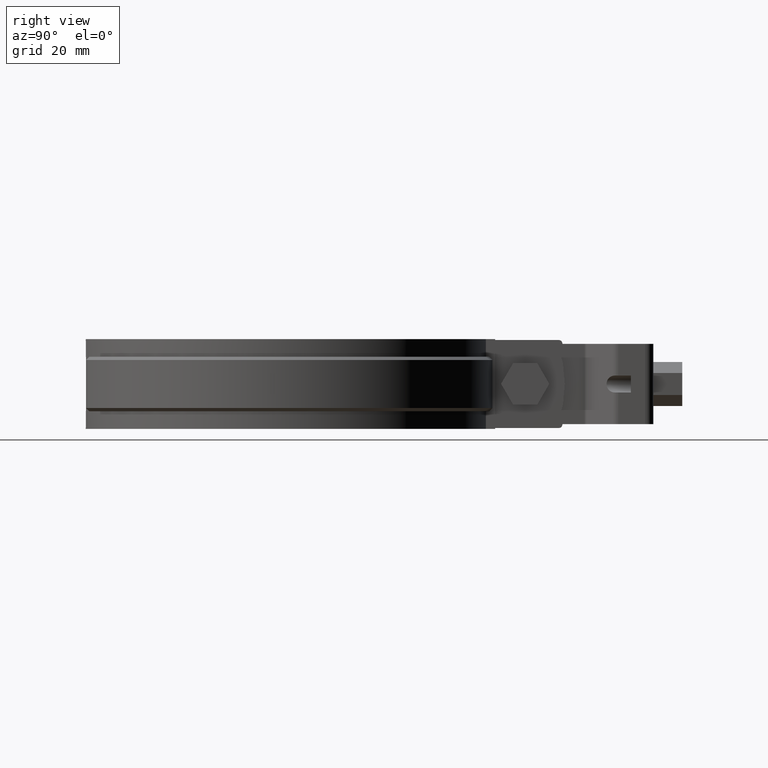
[diagram: clean part render]
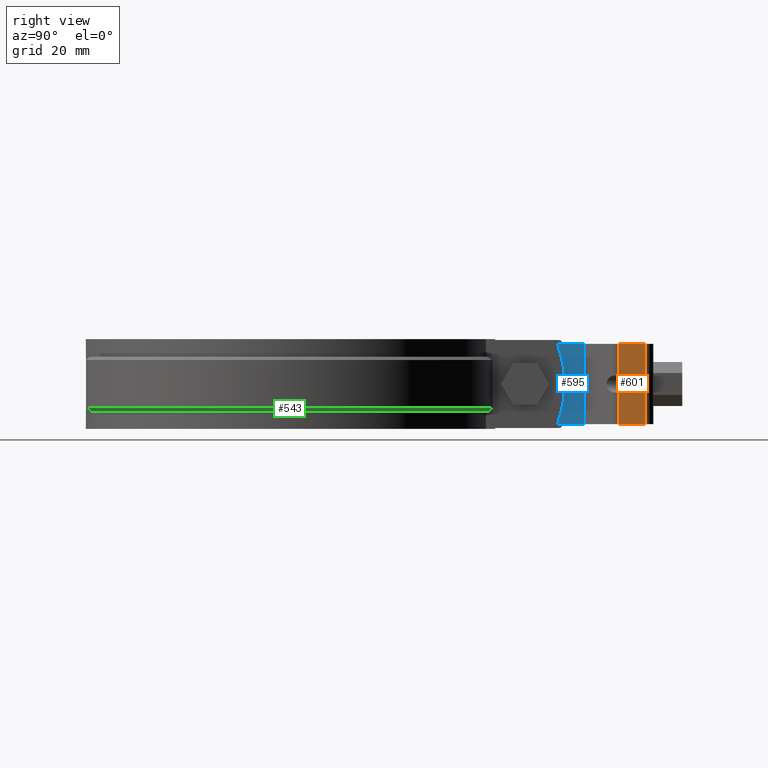
[diagram: same view with three faces highlighted in distinct colors, each labeled with its STEP entity id]
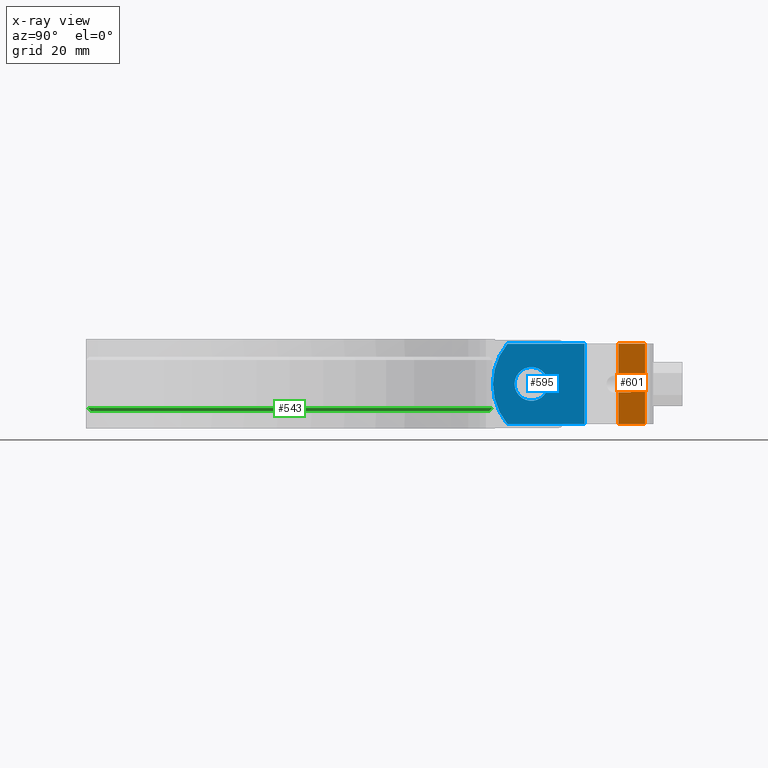
[diagram: x-ray of the same camera — body ghosted, the three highlighted faces saturated]
A machine part, right view with three faces highlighted in distinct colors.
The next image is the same camera in x-ray (body ghosted, the three faces saturated) — at least one of them is partly hidden behind the body in this view.
Their STEP definitions:

[orange] entity #601 — the highlighted planar face has unit normal (1, 0, 0).
#601 = ADVANCED_FACE( '', ( #1098 ), #1099, .T. );
#1098 = FACE_OUTER_BOUND( '', #2386, .T. );
#1099 = PLANE( '', #2387 );
#2386 = EDGE_LOOP( '', ( #5071, #5072, #5073, #5074, #5075, #5076, #5077, #5078 ) );
#2387 = AXIS2_PLACEMENT_3D( '', #5079, #5080, #5081 );
#5071 = ORIENTED_EDGE( '', *, *, #7152, .T. );
#5072 = ORIENTED_EDGE( '', *, *, #7153, .T. );
#5073 = ORIENTED_EDGE( '', *, *, #7154, .F. );
#5074 = ORIENTED_EDGE( '', *, *, #7113, .F. );
#5075 = ORIENTED_EDGE( '', *, *, #7150, .T. );
#5076 = ORIENTED_EDGE( '', *, *, #7138, .T. );
#5077 = ORIENTED_EDGE( '', *, *, #7148, .F. );
#5078 = ORIENTED_EDGE( '', *, *, #7134, .F. );
#5079 = CARTESIAN_POINT( '', ( 12.2499999999805, 103.497631763381, 12.4999999990655 ) );
#5080 = DIRECTION( '', ( 1.00000000000000, 2.55394610918241E-013, 1.69013704294046E-013 ) );
#5081 = DIRECTION( '', ( 2.55394610917021E-013, -1.00000000000000, 7.21711579387898E-012 ) );
#7113 = EDGE_CURVE( '', #8325, #8327, #8328, .T. );
#7134 = EDGE_CURVE( '', #8364, #8366, #8367, .T. );
#7138 = EDGE_CURVE( '', #8374, #8372, #8375, .T. );
#7148 = EDGE_CURVE( '', #8366, #8372, #8391, .T. );
#7150 = EDGE_CURVE( '', #8325, #8374, #8393, .T. );
#7152 = EDGE_CURVE( '', #8364, #8395, #8396, .T. );
#7153 = EDGE_CURVE( '', #8395, #8397, #8398, .T. );
#7154 = EDGE_CURVE( '', #8327, #8397, #8399, .T. );
#8325 = VERTEX_POINT( '', #12198 );
#8327 = VERTEX_POINT( '', #12200 );
#8328 = LINE( '', #12201, #12202 );
#8364 = VERTEX_POINT( '', #12248 );
#8366 = VERTEX_POINT( '', #12259 );
#8367 = LINE( '', #12260, #12261 );
#8372 = VERTEX_POINT( '', #12266 );
#8374 = VERTEX_POINT( '', #12268 );
#8375 = LINE( '', #12269, #12270 );
#8391 = LINE( '', #12307, #12308 );
#8393 = LINE( '', #12311, #12312 );
#8395 = VERTEX_POINT( '', #12315 );
#8396 = LINE( '', #12316, #12317 );
#8397 = VERTEX_POINT( '', #12318 );
#8398 = LINE( '', #12319, #12320 );
#8399 = LINE( '', #12321, #12322 );
#12198 = CARTESIAN_POINT( '', ( 12.2499999999805, 103.497631763381, 12.4999999990655 ) );
#12200 = CARTESIAN_POINT( '', ( 12.2499999999783, 111.801825964267, 12.4999999990056 ) );
#12201 = CARTESIAN_POINT( '', ( 12.2499999999805, 103.497631763381, 12.4999999990655 ) );
#12202 = VECTOR( '', #14107, 1000.00000000000 );
#12248 = CARTESIAN_POINT( '', ( 12.2499999999830, 103.497631763272, -2.65000000093443 ) );
#12259 = CARTESIAN_POINT( '', ( 12.2499999999820, 107.401825964157, -2.65000000096260 ) );
#12260 = CARTESIAN_POINT( '', ( 12.2499999999846, 97.4018259641571, -2.65000000089044 ) );
#12261 = VECTOR( '', #14145, 1000.00000000000 );
#12266 = CARTESIAN_POINT( '', ( 12.2499999999811, 107.401825964195, 2.64999999903734 ) );
#12268 = CARTESIAN_POINT( '', ( 12.2499999999821, 103.497631763310, 2.64999999906551 ) );
#12269 = CARTESIAN_POINT( '', ( 12.2499999999837, 97.4018259641954, 2.64999999910950 ) );
#12270 = VECTOR( '', #14155, 1000.00000000000 );
#12307 = CARTESIAN_POINT( '', ( 12.2499999999823, 107.401825964146, -4.25000000096260 ) );
#12308 = VECTOR( '', #14166, 1000.00000000000 );
#12311 = CARTESIAN_POINT( '', ( 12.2499999999805, 103.497631763381, 12.4999999990655 ) );
#12312 = VECTOR( '', #14168, 1000.00000000000 );
#12315 = CARTESIAN_POINT( '', ( 12.2499999999847, 103.497631763200, -12.5000000009345 ) );
#12316 = CARTESIAN_POINT( '', ( 12.2499999999805, 103.497631763381, 12.4999999990655 ) );
#12317 = VECTOR( '', #14170, 1000.00000000000 );
#12318 = CARTESIAN_POINT( '', ( 12.2499999999826, 111.801825964086, -12.5000000009944 ) );
#12319 = CARTESIAN_POINT( '', ( 12.2499999999847, 103.497631763200, -12.5000000009345 ) );
#12320 = VECTOR( '', #14171, 1000.00000000000 );
#12321 = CARTESIAN_POINT( '', ( 12.2499999999783, 111.801825964267, 12.4999999990056 ) );
#12322 = VECTOR( '', #14172, 1000.00000000000 );
#14107 = DIRECTION( '', ( -2.55394610917021E-013, 1.00000000000000, -7.21711579387898E-012 ) );
#14145 = DIRECTION( '', ( -2.55394610917021E-013, 1.00000000000000, -7.21711579387898E-012 ) );
#14155 = DIRECTION( '', ( -2.55394610917021E-013, 1.00000000000000, -7.21711579387898E-012 ) );
#14166 = DIRECTION( '', ( -1.69011853759909E-013, 7.21711579387894E-012, 1.00000000000000 ) );
#14168 = DIRECTION( '', ( 1.69013704295889E-013, -7.21711579387894E-012, -1.00000000000000 ) );
#14170 = DIRECTION( '', ( 1.69013704295889E-013, -7.21711579387894E-012, -1.00000000000000 ) );
#14171 = DIRECTION( '', ( -2.55394610917021E-013, 1.00000000000000, -7.21711579387898E-012 ) );
#14172 = DIRECTION( '', ( 1.69013704295889E-013, -7.21711579387894E-012, -1.00000000000000 ) );

[blue] entity #595 — the highlighted planar face has unit normal (1, 0, 0).
#595 = ADVANCED_FACE( '', ( #1085, #1086 ), #1087, .T. );
#1085 = FACE_BOUND( '', #2373, .T. );
#1086 = FACE_OUTER_BOUND( '', #2374, .T. );
#1087 = PLANE( '', #2375 );
#2373 = EDGE_LOOP( '', ( #5022 ) );
#2374 = EDGE_LOOP( '', ( #5023, #5024, #5025, #5026 ) );
#2375 = AXIS2_PLACEMENT_3D( '', #5027, #5028, #5029 );
#5022 = ORIENTED_EDGE( '', *, *, #7129, .F. );
#5023 = ORIENTED_EDGE( '', *, *, #7109, .T. );
#5024 = ORIENTED_EDGE( '', *, *, #7127, .F. );
#5025 = ORIENTED_EDGE( '', *, *, #7130, .F. );
#5026 = ORIENTED_EDGE( '', *, *, #7131, .F. );
#5027 = CARTESIAN_POINT( '', ( 2.99999999998729, 93.3774361374943, -12.5000000008630 ) );
#5028 = DIRECTION( '', ( 1.00000000000000, 2.55616655523167E-013, 1.69074934611736E-013 ) );
#5029 = DIRECTION( '', ( -2.55616655521946E-013, 1.00000000000000, -7.21711579387898E-012 ) );
#7109 = EDGE_CURVE( '', #8319, #8317, #8320, .T. );
#7127 = EDGE_CURVE( '', #8351, #8317, #8354, .T. );
#7129 = EDGE_CURVE( '', #8356, #8356, #8357, .F. );
#7130 = EDGE_CURVE( '', #8358, #8351, #8359, .T. );
#7131 = EDGE_CURVE( '', #8319, #8358, #8360, .F. );
#8317 = VERTEX_POINT( '', #12187 );
#8319 = VERTEX_POINT( '', #12190 );
#8320 = LINE( '', #12191, #12192 );
#8351 = VERTEX_POINT( '', #12232 );
#8354 = CIRCLE( '', #12236, 19.6111110000000 );
#8356 = VERTEX_POINT( '', #12238 );
#8357 = CIRCLE( '', #12239, 5.25000000000002 );
#8358 = VERTEX_POINT( '', #12240 );
#8359 = LINE( '', #12241, #12242 );
#8360 = LINE( '', #12243, #12244 );
#12187 = CARTESIAN_POINT( '', ( 2.99999999998934, 68.9018260022440, 12.5000000052270 ) );
#12190 = CARTESIAN_POINT( '', ( 2.99999999998317, 92.9559723687847, 12.4999999991400 ) );
#12191 = CARTESIAN_POINT( '', ( 2.99999999998306, 93.3774361376747, 12.4999999991370 ) );
#12192 = VECTOR( '', #14099, 1000.00000000000 );
#12232 = CARTESIAN_POINT( '', ( 2.99999999999354, 68.9018259971721, -12.5000000006863 ) );
#12236 = AXIS2_PLACEMENT_3D( '', #14131, #14132, #14133 );
#12238 = CARTESIAN_POINT( '', ( 2.99999999998817, 81.6518259641741, -7.78353104191613E-010 ) );
#12239 = AXIS2_PLACEMENT_3D( '', #14137, #14138, #14139 );
#12240 = CARTESIAN_POINT( '', ( 2.99999999998740, 92.9559723686042, -12.5000000008599 ) );
#12241 = CARTESIAN_POINT( '', ( 2.99999999998729, 93.3774361374943, -12.5000000008630 ) );
#12242 = VECTOR( '', #14140, 1000.00000000000 );
#12243 = CARTESIAN_POINT( '', ( 2.99999999998740, 92.9559723686042, -12.5000000008599 ) );
#12244 = VECTOR( '', #14141, 1000.00000000000 );
#14099 = DIRECTION( '', ( 2.55283588614559E-013, -1.00000000000000, 7.21711579387898E-012 ) );
#14131 = CARTESIAN_POINT( '', ( 2.99999999998756, 84.0129369641741, -7.95377652629270E-010 ) );
#14132 = DIRECTION( '', ( -1.00000000000000, -2.55616655523167E-013, -1.69074934611736E-013 ) );
#14133 = DIRECTION( '', ( -2.55616655521946E-013, 1.00000000000000, -7.21711579387898E-012 ) );
#14137 = CARTESIAN_POINT( '', ( 2.99999999998951, 76.4018259641741, -7.40463246273748E-010 ) );
#14138 = DIRECTION( '', ( -1.00000000000000, -2.55616655523167E-013, -1.69074934611736E-013 ) );
#14139 = DIRECTION( '', ( -2.55616655521946E-013, 1.00000000000000, -7.21711579387898E-012 ) );
#14140 = DIRECTION( '', ( 2.55283588614559E-013, -1.00000000000000, 7.21711579387898E-012 ) );
#14141 = DIRECTION( '', ( -1.69074934613580E-013, 7.21705605698639E-012, 1.00000000000000 ) );

[green] entity #543 — the highlighted conical surface has half-angle 45 deg.
#543 = ADVANCED_FACE( '', ( #980 ), #981, .T. );
#980 = FACE_OUTER_BOUND( '', #2130, .T. );
#981 = CONICAL_SURFACE( '', #2131, 63.5000000000000, 0.785398163397448 );
#2130 = EDGE_LOOP( '', ( #4549, #4550, #4551, #4552 ) );
#2131 = AXIS2_PLACEMENT_3D( '', #4553, #4554, #4555 );
#4549 = ORIENTED_EDGE( '', *, *, #6976, .F. );
#4550 = ORIENTED_EDGE( '', *, *, #6977, .F. );
#4551 = ORIENTED_EDGE( '', *, *, #6978, .F. );
#4552 = ORIENTED_EDGE( '', *, *, #6979, .F. );
#4553 = CARTESIAN_POINT( '', ( 8.67361737988404E-016, 1.38777878078145E-014, -8.50000000000000 ) );
#4554 = DIRECTION( '', ( 0.000000000000000, 0.000000000000000, 1.00000000000000 ) );
#4555 = DIRECTION( '', ( 1.00000000000000, 0.000000000000000, 0.000000000000000 ) );
#6976 = EDGE_CURVE( '', #8103, #8104, #8105, .T. );
#6977 = EDGE_CURVE( '', #8106, #8103, #8107, .T. );
#6978 = EDGE_CURVE( '', #8108, #8106, #8109, .T. );
#6979 = EDGE_CURVE( '', #8104, #8108, #8110, .F. );
#8103 = VERTEX_POINT( '', #11838 );
#8104 = VERTEX_POINT( '', #11839 );
#8105 = B_SPLINE_CURVE_WITH_KNOTS( '', 3, ( #11840, #11841, #11842, #11843 ), .UNSPECIFIED., .F., .F., ( 4, 4 ), ( 0.000000000000000, 0.00141734524585473 ), .UNSPECIFIED. );
#8106 = VERTEX_POINT( '', #11844 );
#8107 = CIRCLE( '', #11845, 64.5000000000000 );
#8108 = VERTEX_POINT( '', #11846 );
#8109 = LINE( '', #11847, #11848 );
#8110 = CIRCLE( '', #11849, 63.5000000000000 );
#11838 = CARTESIAN_POINT( '', ( 6.00000000000000, 64.2203238858229, -7.50000000000000 ) );
#11839 = CARTESIAN_POINT( '', ( 6.00000000000000, 63.2158998986806, -8.50000000000000 ) );
#11840 = CARTESIAN_POINT( '', ( 6.00000000000000, 64.2203238858229, -7.50000000000000 ) );
#11841 = CARTESIAN_POINT( '', ( 6.00000000000000, 63.8855273465806, -7.83334484009294 ) );
#11842 = CARTESIAN_POINT( '', ( 6.00000000000000, 63.5507195316811, -8.16667835584443 ) );
#11843 = CARTESIAN_POINT( '', ( 6.00000000000000, 63.2158998986806, -8.50000000000000 ) );
#11844 = CARTESIAN_POINT( '', ( 18.3698391239513, -61.8287878787879, -7.50000000000000 ) );
#11845 = AXIS2_PLACEMENT_3D( '', #13892, #13893, #13894 );
#11846 = CARTESIAN_POINT( '', ( 18.0850354166032, -60.8702020202020, -8.50000000000000 ) );
#11847 = CARTESIAN_POINT( '', ( 18.0850354166032, -60.8702020202020, -8.50000000000000 ) );
#11848 = VECTOR( '', #13895, 1000.00000000000 );
#11849 = AXIS2_PLACEMENT_3D( '', #13896, #13897, #13898 );
#13892 = CARTESIAN_POINT( '', ( 8.67361737988404E-016, 1.38777878078145E-014, -7.50000000000000 ) );
#13893 = DIRECTION( '', ( 0.000000000000000, 0.000000000000000, 1.00000000000000 ) );
#13894 = DIRECTION( '', ( 1.00000000000000, 0.000000000000000, 0.000000000000000 ) );
#13895 = DIRECTION( '', ( 0.201386632772898, -0.677822560955589, 0.707106781186548 ) );
#13896 = CARTESIAN_POINT( '', ( 8.67361737988404E-016, 1.38777878078145E-014, -8.50000000000000 ) );
#13897 = DIRECTION( '', ( 0.000000000000000, 0.000000000000000, 1.00000000000000 ) );
#13898 = DIRECTION( '', ( 1.00000000000000, 0.000000000000000, 0.000000000000000 ) );